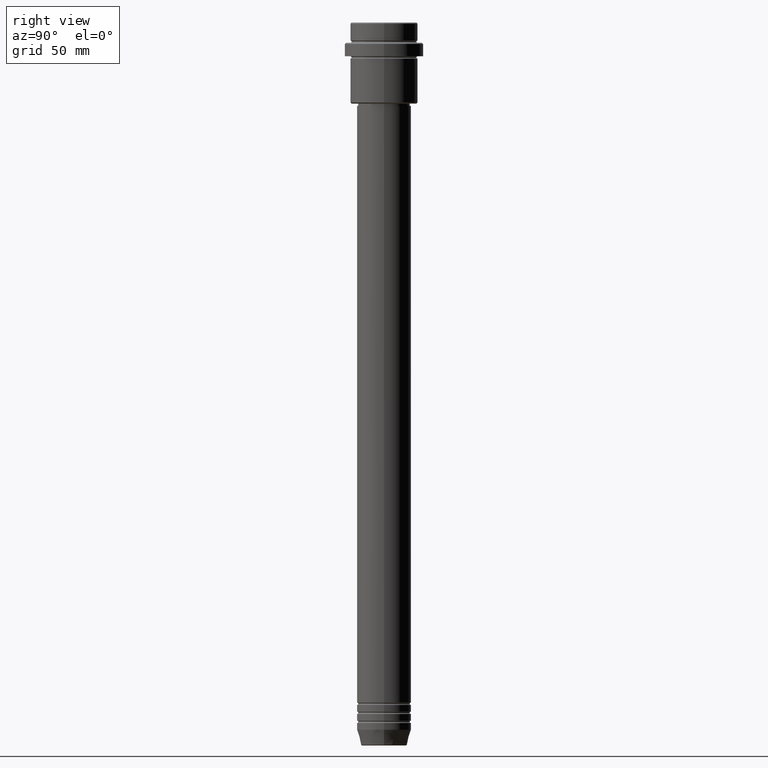
[diagram: clean part render]
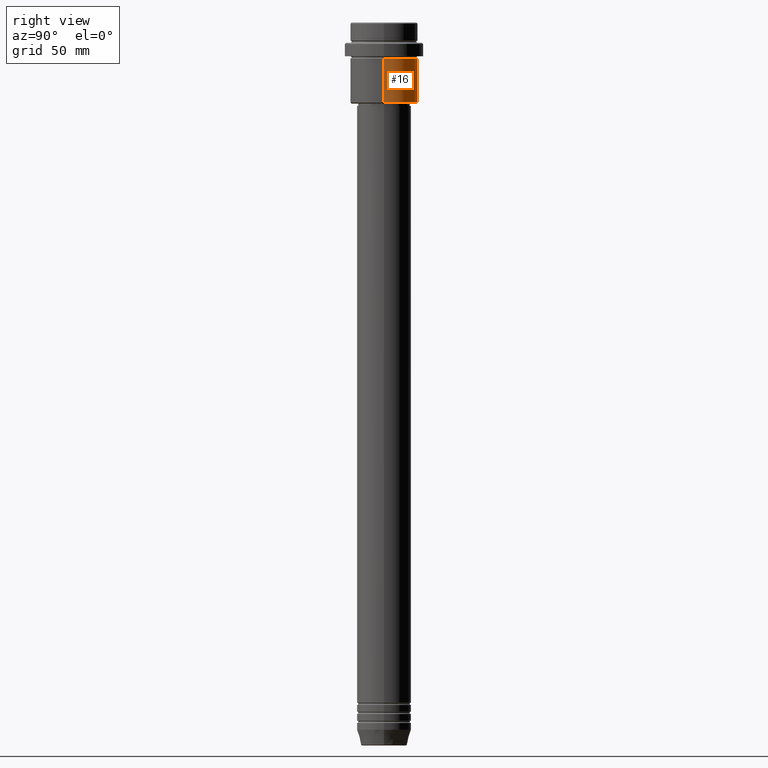
[diagram: same view with one face highlighted and labeled with its STEP entity id]
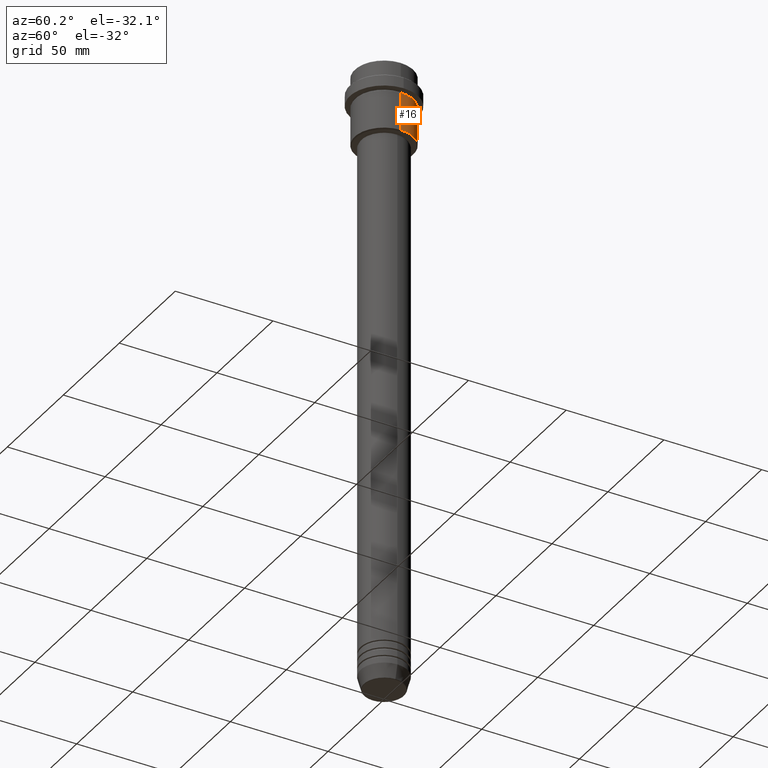
[diagram: same view with one face highlighted and labeled with its STEP entity id]
A machine part, right view. The second image highlights one B-rep face of the part: STEP entity #16.
A second angle (auxiliary view) of the same face is appended — the face is thin or edge-on in the first view.
In plain terms, the highlighted cylindrical surface (edge-blend (fillet) strip) has radius 15 mm, axis along (-0, -0, 1).
Its self-contained STEP definition (entity closure, byte-faithful):
#6 = AXIS2_PLACEMENT_3D ( 'NONE', #473, #260, #1131 ) ;
#16 = ADVANCED_FACE ( 'NONE', ( #948 ), #722, .T. ) ;
#62 = VERTEX_POINT ( 'NONE', #1259 ) ;
#110 = EDGE_CURVE ( 'NONE', #274, #1346, #548, .T. ) ;
#182 = EDGE_CURVE ( 'NONE', #417, #62, #253, .T. ) ;
#191 = CARTESIAN_POINT ( 'NONE',  ( 0.000000000000000000, 0.000000000000000000, -35.50000000000001421 ) ) ;
#213 = AXIS2_PLACEMENT_3D ( 'NONE', #1268, #848, #1377 ) ;
#240 = VECTOR ( 'NONE', #1101, 1000.000000000000000 ) ;
#253 = LINE ( 'NONE', #986, #240 ) ;
#260 = DIRECTION ( 'NONE',  ( -0.000000000000000000, -0.000000000000000000, 1.000000000000000000 ) ) ;
#261 = ORIENTED_EDGE ( 'NONE', *, *, #1344, .T. ) ;
#271 = AXIS2_PLACEMENT_3D ( 'NONE', #191, #1371, #949 ) ;
#274 = VERTEX_POINT ( 'NONE', #1157 ) ;
#275 = CARTESIAN_POINT ( 'NONE',  ( -15.00000000000000000, 1.836970198721029589E-15, -35.50000000000001421 ) ) ;
#342 = DIRECTION ( 'NONE',  ( -0.000000000000000000, -0.000000000000000000, 1.000000000000000000 ) ) ;
#380 = CIRCLE ( 'NONE', #6, 15.00000000000000178 ) ;
#417 = VERTEX_POINT ( 'NONE', #275 ) ;
#473 = CARTESIAN_POINT ( 'NONE',  ( 0.000000000000000000, 0.000000000000000000, -16.00000000000000000 ) ) ;
#548 = LINE ( 'NONE', #1294, #757 ) ;
#626 = ORIENTED_EDGE ( 'NONE', *, *, #110, .F. ) ;
#693 = ORIENTED_EDGE ( 'NONE', *, *, #851, .F. ) ;
#722 = CYLINDRICAL_SURFACE ( 'NONE', #213, 15.00000000000000000 ) ;
#757 = VECTOR ( 'NONE', #342, 1000.000000000000000 ) ;
#848 = DIRECTION ( 'NONE',  ( -0.000000000000000000, -0.000000000000000000, 1.000000000000000000 ) ) ;
#851 = EDGE_CURVE ( 'NONE', #1346, #62, #380, .T. ) ;
#948 = FACE_OUTER_BOUND ( 'NONE', #1387, .T. ) ;
#949 = DIRECTION ( 'NONE',  ( -1.000000000000000000, 0.000000000000000000, 0.000000000000000000 ) ) ;
#956 = ORIENTED_EDGE ( 'NONE', *, *, #182, .T. ) ;
#986 = CARTESIAN_POINT ( 'NONE',  ( -15.00000000000000000, 1.836970198721029589E-15, 0.000000000000000000 ) ) ;
#1101 = DIRECTION ( 'NONE',  ( -0.000000000000000000, -0.000000000000000000, 1.000000000000000000 ) ) ;
#1131 = DIRECTION ( 'NONE',  ( 1.000000000000000000, 0.000000000000000000, 0.000000000000000000 ) ) ;
#1132 = CIRCLE ( 'NONE', #271, 15.00000000000000000 ) ;
#1157 = CARTESIAN_POINT ( 'NONE',  ( 15.00000000000000000, 0.000000000000000000, -35.50000000000001421 ) ) ;
#1259 = CARTESIAN_POINT ( 'NONE',  ( -15.00000000000000355, 1.836970198721029983E-15, -16.00000000000000000 ) ) ;
#1268 = CARTESIAN_POINT ( 'NONE',  ( 0.000000000000000000, 0.000000000000000000, 0.000000000000000000 ) ) ;
#1269 = CARTESIAN_POINT ( 'NONE',  ( 15.00000000000000178, 0.000000000000000000, -16.00000000000000000 ) ) ;
#1294 = CARTESIAN_POINT ( 'NONE',  ( 15.00000000000000000, 0.000000000000000000, 0.000000000000000000 ) ) ;
#1344 = EDGE_CURVE ( 'NONE', #274, #417, #1132, .T. ) ;
#1346 = VERTEX_POINT ( 'NONE', #1269 ) ;
#1371 = DIRECTION ( 'NONE',  ( -0.000000000000000000, -0.000000000000000000, 1.000000000000000000 ) ) ;
#1377 = DIRECTION ( 'NONE',  ( 1.000000000000000000, 0.000000000000000000, 0.000000000000000000 ) ) ;
#1387 = EDGE_LOOP ( 'NONE', ( #261, #956, #693, #626 ) ) ;